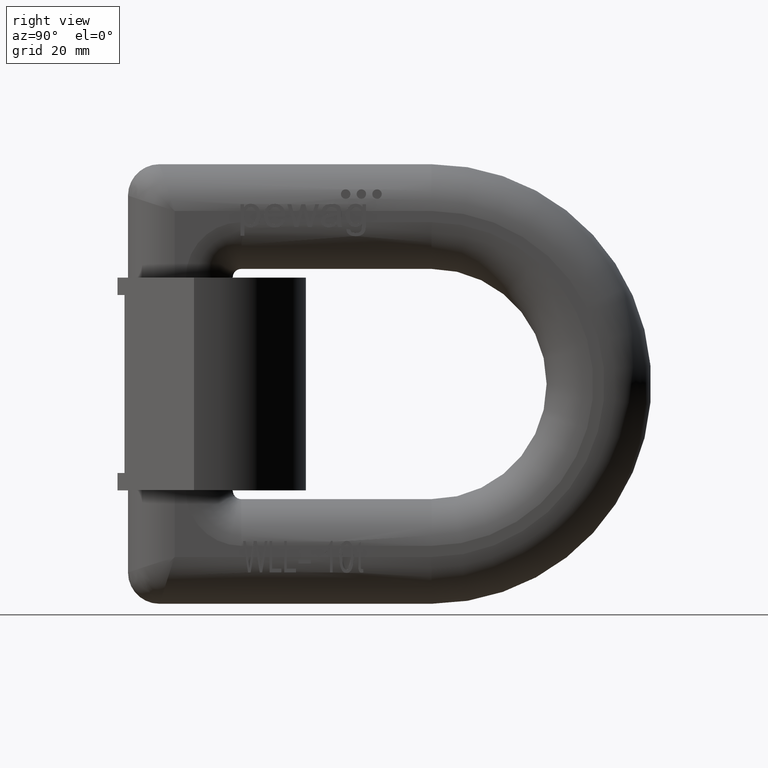
[diagram: clean part render]
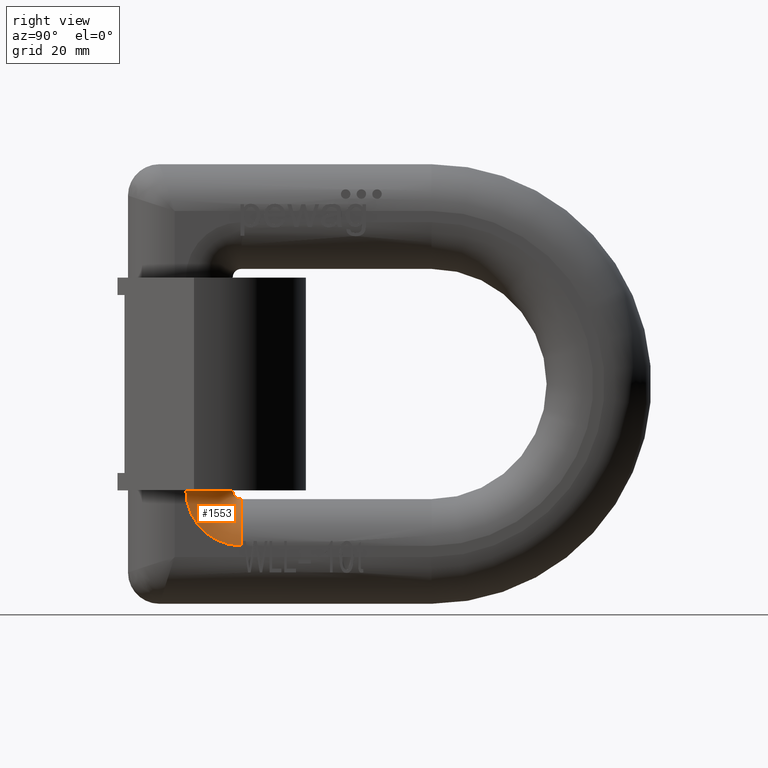
[diagram: same view with one face highlighted and labeled with its STEP entity id]
A machine part, right view. The second image highlights one B-rep face of the part: STEP entity #1553.
In plain terms, the highlighted toroidal blend (fillet) surface has major radius 15.9 mm and minor (blend) radius 13.4 mm.
Its self-contained STEP definition (entity closure, byte-faithful):
#181=TOROIDAL_SURFACE('',#9253,15.9,13.4);
#1553=ADVANCED_FACE('',(#2061),#181,.T.);
#2061=FACE_OUTER_BOUND('',#2537,.T.);
#2537=EDGE_LOOP('',(#4505,#4506,#4507,#4508));
#2734=CIRCLE('',#8932,2.49999999999999);
#2782=CIRCLE('',#9160,15.9);
#2792=CIRCLE('',#9180,13.4);
#2813=CIRCLE('',#9249,13.4);
#4505=ORIENTED_EDGE('',*,*,#7219,.T.);
#4506=ORIENTED_EDGE('',*,*,#6967,.F.);
#4507=ORIENTED_EDGE('',*,*,#7018,.F.);
#4508=ORIENTED_EDGE('',*,*,#6326,.F.);
#5448=VERTEX_POINT('',#11126);
#5450=VERTEX_POINT('',#11132);
#5874=VERTEX_POINT('',#14587);
#5875=VERTEX_POINT('',#14589);
#6326=EDGE_CURVE('',#5448,#5450,#2734,.T.);
#6967=EDGE_CURVE('',#5874,#5875,#2782,.T.);
#7018=EDGE_CURVE('',#5450,#5874,#2792,.T.);
#7219=EDGE_CURVE('',#5448,#5875,#2813,.T.);
#8932=AXIS2_PLACEMENT_3D('',#11131,#9461,#9462);
#9160=AXIS2_PLACEMENT_3D('',#14588,#10277,#10278);
#9180=AXIS2_PLACEMENT_3D('',#14736,#10344,#10345);
#9249=AXIS2_PLACEMENT_3D('',#16009,#10555,#10556);
#9253=AXIS2_PLACEMENT_3D('',#16026,#10563,#10564);
#9461=DIRECTION('',(1.,0.,2.34291072916505E-15));
#9462=DIRECTION('',(2.3418766925687E-15,0.,-0.999999999999999));
#10277=DIRECTION('',(-1.,0.,-2.34291072916505E-15));
#10278=DIRECTION('',(2.29114421355427E-15,0.,-1.));
#10344=DIRECTION('',(-6.06612275223962E-30,1.,2.58913951638329E-15));
#10345=DIRECTION('',(2.3433735388516E-15,2.58913951638329E-15,-1.));
#10555=DIRECTION('',(2.34291072916505E-15,0.,-1.));
#10556=DIRECTION('',(-1.,0.,-2.33022556474496E-15));
#10563=DIRECTION('',(1.,0.,2.34291072916505E-15));
#10564=DIRECTION('',(2.34278327800302E-15,0.,-1.));
#11126=CARTESIAN_POINT('',(0.100000000000071,33.,-30.5));
#11131=CARTESIAN_POINT('',(0.100000000000071,35.5,-30.5));
#11132=CARTESIAN_POINT('',(0.100000000000077,35.5,-33.));
#14587=CARTESIAN_POINT('',(13.5000000000001,35.5,-46.4));
#14588=CARTESIAN_POINT('',(13.5000000000001,35.5,-30.5));
#14589=CARTESIAN_POINT('',(13.5000000000001,19.6,-30.5));
#14736=CARTESIAN_POINT('',(0.100000000000108,35.5,-46.4));
#16009=CARTESIAN_POINT('',(0.100000000000071,19.6,-30.5));
#16026=CARTESIAN_POINT('',(0.100000000000071,35.5,-30.5));